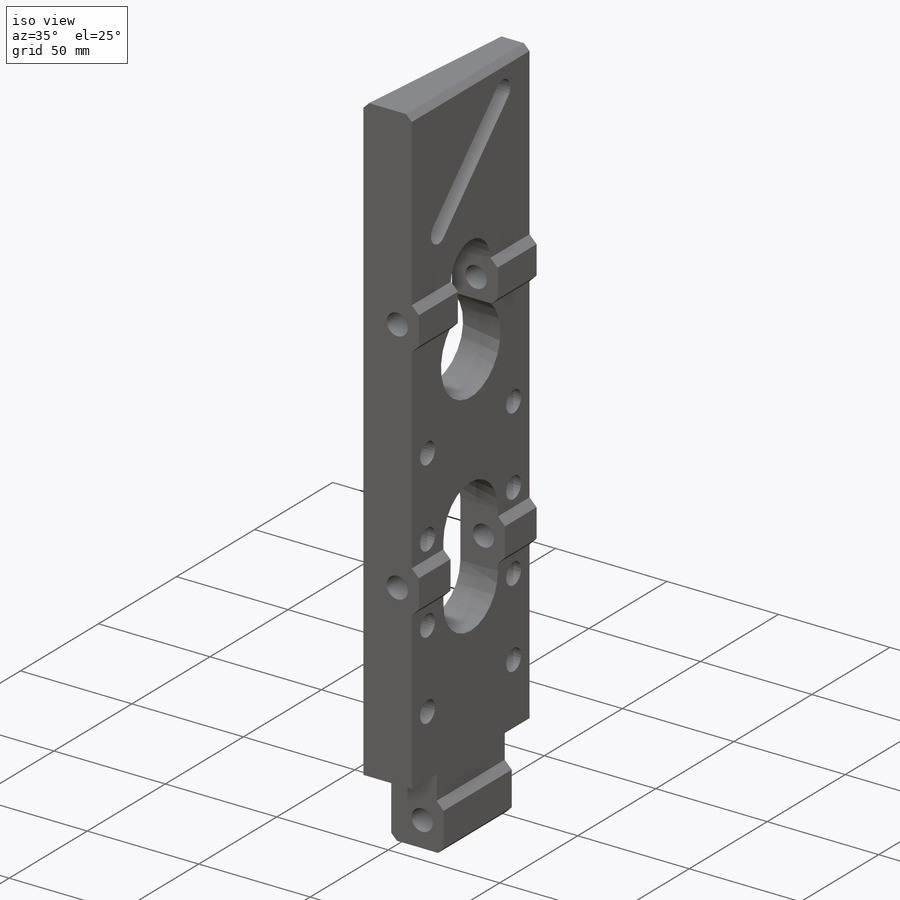
[diagram: iso view]
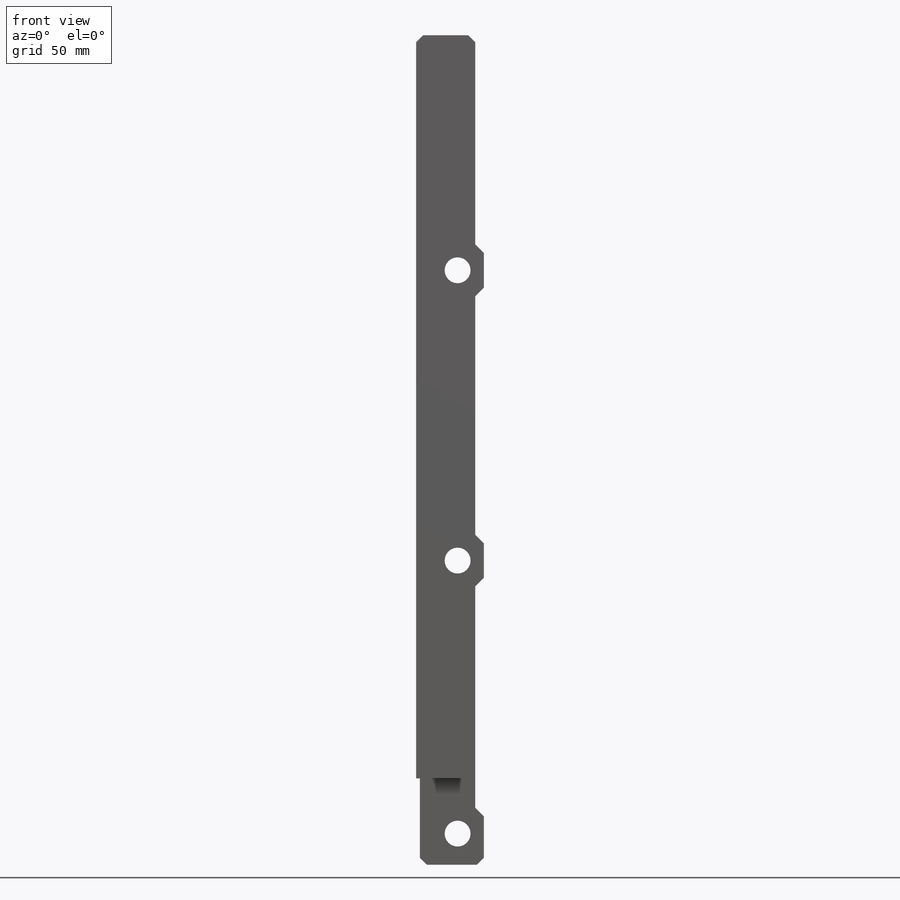
[diagram: front view]
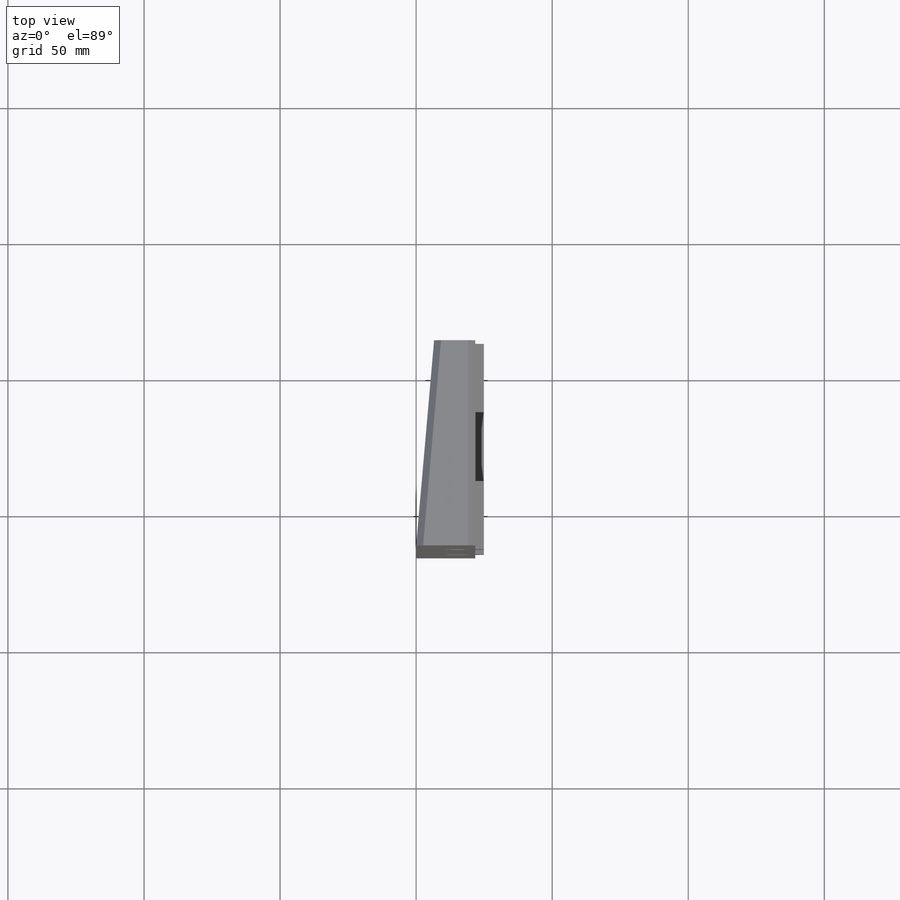
[diagram: top view]
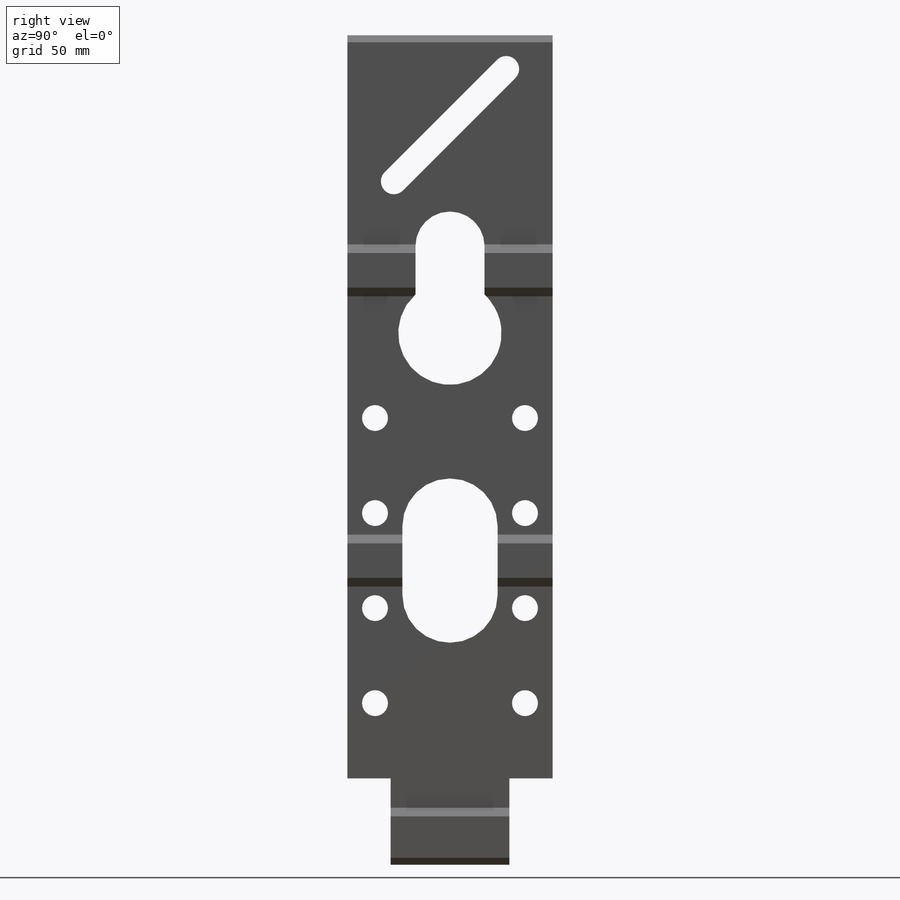
[diagram: right view]
SOLIDWORKS PART (.sldprt)
format: sldprt  version: not decoded by parser v0  size: 391,680 bytes
history: native  units: mm
features: sketch x9, cut_extrude x8, material x1, extrude x1, pattern_linear x1, chamfer x1 (+11 scaffold rows collapsed)
feature tree (32):
  scaffold x11  (default folders/planes/origin — collapsed)
  material  "Material <not specified>"
  sketch  "Sketch1"  dims[c1.D1=76.2mm c1.D2=12.7mm c1.D3=12.7mm c1.D4=304.8mm c1.D5=31.75mm c1.D6=101.6mm c2.D3=50.8mm c2.D7=38.1mm c2.D1=12.7mm c2.D2=12.7mm c3.D3=75.438mm c3.D1=43.6372mm]
  extrude  "Boss-Extrude1"  Depth=24.892mm
  sketch  "Sketch11"  dims[c1.D3=19.05mm c1.D1=31.75mm c1.D2=25.4mm c2.D3=38.1mm c2.D4=111.76mm c2.D5=212.09mm c2.D6=34.9758mm c2.D1=25.4mm c3.D5=17.78mm c3.D7=106.68mm]
  cut_extrude  "Cut-Extrude8"  [1 undecoded]
  sketch  "Sketch8"  dims[c1.D1=76.2mm c2.D1=5.0deg c3.D1=76.2mm c4.D1=5.0deg c5.D1=76.2mm c6.D1=5.0deg]
  cut_extrude  "Cut-Extrude6"  [1 undecoded]
  sketch  "Sketch9"  dims[c1.D1=5.08mm c1.D3=9.525mm c1.D4=9.525mm c2.D1=6.35mm c2.D2=10.16mm c3.D1=9.652mm c3.D2=218.44mm c3.D4=6.35mm]
  cut_extrude  "Cut-Extrude7"  Depth=152.4mm
  sketch  "Sketch2"  dims[c1.D1=12.7mm c1.D2=6.35mm c2.D1=6.35mm c2.D2=~8.995893mm c3.D1=6.35mm c3.D2=111.76mm c4.D1=100.33mm]
  cut_extrude  "Cut-Extrude1"  [1 undecoded]
  sketch  "Sketch3"  dims[D1=6.35mm D2=11.43mm]
  cut_extrude  "Cut-Extrude2"  [1 undecoded]
  sketch  "Sketch12"  dims[c1.D1=9.525mm c1.D2=~57.95208mm c2.D2=45.0deg c2.D3=58.42mm c2.D4=30.48mm c3.D2=33.02mm c3.D4=~41.309178mm c4.D4=45.0deg]
  cut_extrude  "Cut-Extrude9"  [1 undecoded]
  sketch  "Sketch13"  dims[c1.D1=~7.791905mm c2.D1=45.0deg c2.D2=~85.713394mm c3.D2=45.0deg c3.D3=~16.573589mm c4.D3=45.0deg c4.D4=~19.081398mm c5.D4=45.0deg c6.D4=3.175mm c6.D5=12.7mm]
  cut_extrude  "Cut-Extrude10"  [1 undecoded]
  sketch  "Sketch6"  dims[c1.D1=~4.945788mm c1.D3=9.525mm c2.D1=33.02mm c2.D2=10.16mm c3.D1=17.4625mm]
  cut_extrude  "Cut-Extrude4"  [1 undecoded]
  pattern_linear  "LPattern1"  Count1=3 Count2=2 Spacing1=34.925mm Spacing2=34.925mm
  chamfer  "Chamfer1"  Distance=2.54mm Angle=45deg
decode coverage: 13 of 20 modeling features carry decoded parameters
note: ~ marks probable driven/reference dimensions
note: 7 parameter values undecoded
summary: no parameter record found for 7 features
note: suppression state not decoded; provenance and decode notes live in map.json
